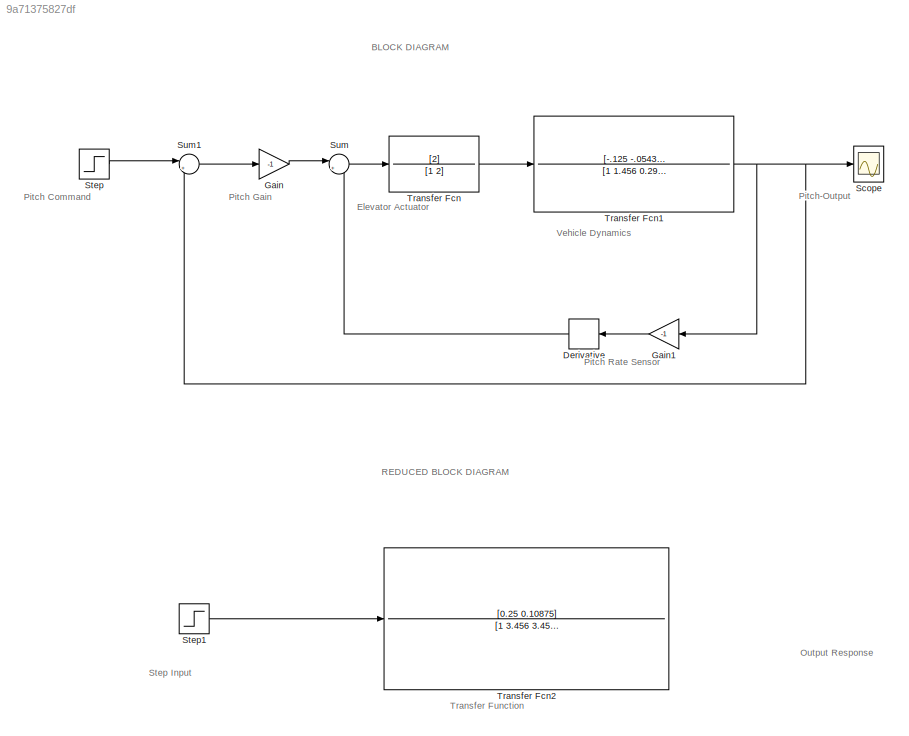
MODEL slx_9a71375827df
KIND model
CONFIG AbsTol = auto
CONFIG EnableMultiTasking = off
CONFIG FixedStep = auto
CONFIG MaxStep = auto
CONFIG MinStep = auto
CONFIG RelTol = 1e-3
CONFIG SampleTimeConstraint = Unconstrained
CONFIG SolverName = VariableStepAuto
CONFIG StartTime = 0.0
CONFIG StopTime = 70
BLOCK [Derivative] Derivative
  NameLocation = top
BLOCK [Gain] Gain
  Gain = -1
BLOCK [Gain] Gain1
  Gain = -1
  NameLocation = top
BLOCK [Scope] Scope
  Floating = off
  NumInputPorts = 1
  Ports = [1]
  ScopeSpecificationString = Simulink.scopes.TimeScopeBlockCfg('CurrentConfiguration', extmgr.ConfigurationSet(extmgr.Configuration('Core','General UI',true,'FigureColor',[1 1 1]),extmgr.Configuration('Core','Source UI',true),extmgr.Configuration('Sources','WiredSimulink',true,'DataLogging',true,'DataLoggingLimitDataPoints',true,'DataLoggingMaxPoints','1000000'),extmgr.Configuration('Visuals','Time Domain',true,'PlotType','Li...<+1712ch>
BLOCK [Step] Step
  SampleTime = 0
BLOCK [Step] Step1
  SampleTime = 0
BLOCK [Sum] Sum
  Inputs = |+-
  Ports = [2, 1]
BLOCK [Sum] Sum1
  Inputs = |+-
  Ports = [2, 1]
BLOCK [TransferFcn] Transfer Fcn
  Denominator = [1 2]
  Numerator = [2]
BLOCK [TransferFcn] Transfer Fcn1
  Denominator = [1 1.456 0.2956 0.02079]
  Numerator = [-.125 -.054375]
BLOCK [TransferFcn] Transfer Fcn2
  Denominator = [1 3.456 3.457 0.9693 0.1503]
  Numerator = [0.25 0.10875]
ANNOTATION (root): REDUCED BLOCK DIAGRAM
ANNOTATION (root): Output Response
ANNOTATION (root): BLOCK DIAGRAM
ANNOTATION (root): Elevator Actuator
ANNOTATION (root): Pitch Command
ANNOTATION (root): Pitch Gain
ANNOTATION (root): Pitch Rate Sensor
ANNOTATION (root): Pitch-Output
ANNOTATION (root): Step Input
ANNOTATION (root): Transfer Function
ANNOTATION (root): Vehicle Dynamics
LINE Derivative:1 -> Sum:2
LINE Gain1:1 -> Derivative:1
LINE Gain:1 -> Sum:1
LINE Step1:1 -> Transfer Fcn2:1
LINE Step:1 -> Sum1:1
LINE Sum1:1 -> Gain:1
LINE Sum:1 -> Transfer Fcn:1
NET Transfer Fcn1:1 -> Gain1:1, Scope:1, Sum1:2
LINE Transfer Fcn:1 -> Transfer Fcn1:1
note: NET lines group one-source signal fan-out (src -> all destinations, sorted); 1:1 wires keep LINE
